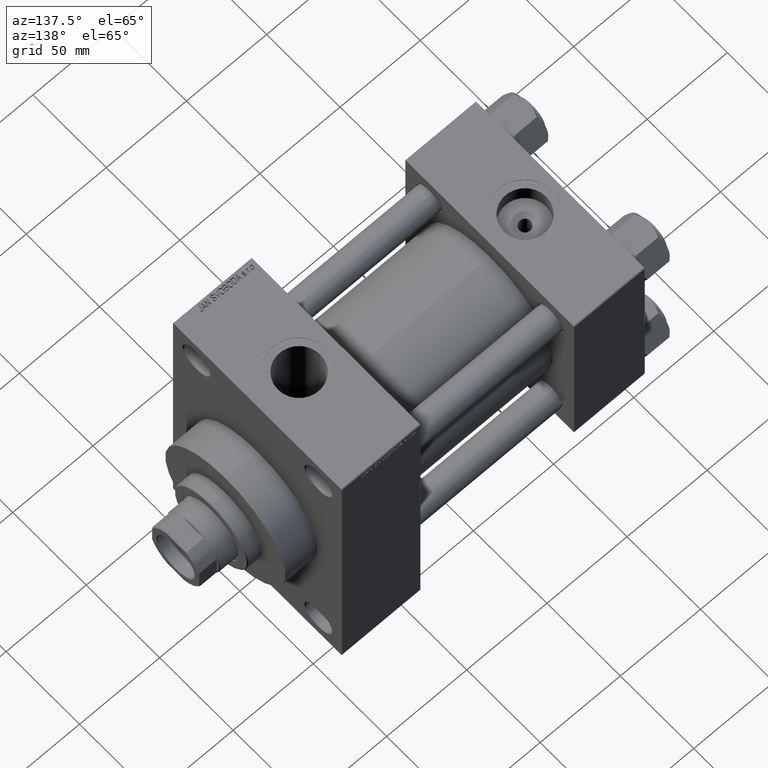
[diagram: clean part render]
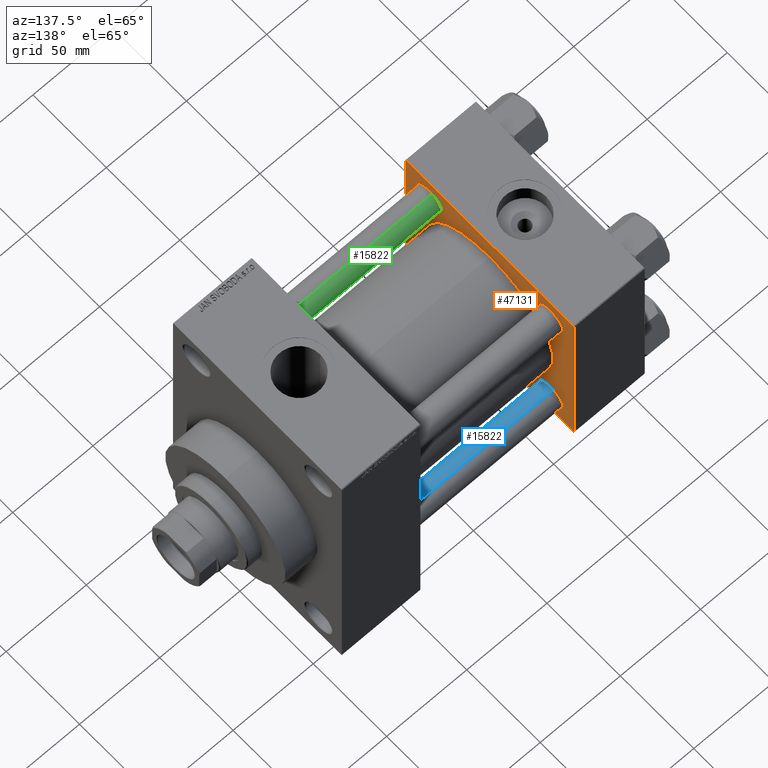
[diagram: same view with three faces highlighted in distinct colors, each labeled with its STEP entity id]
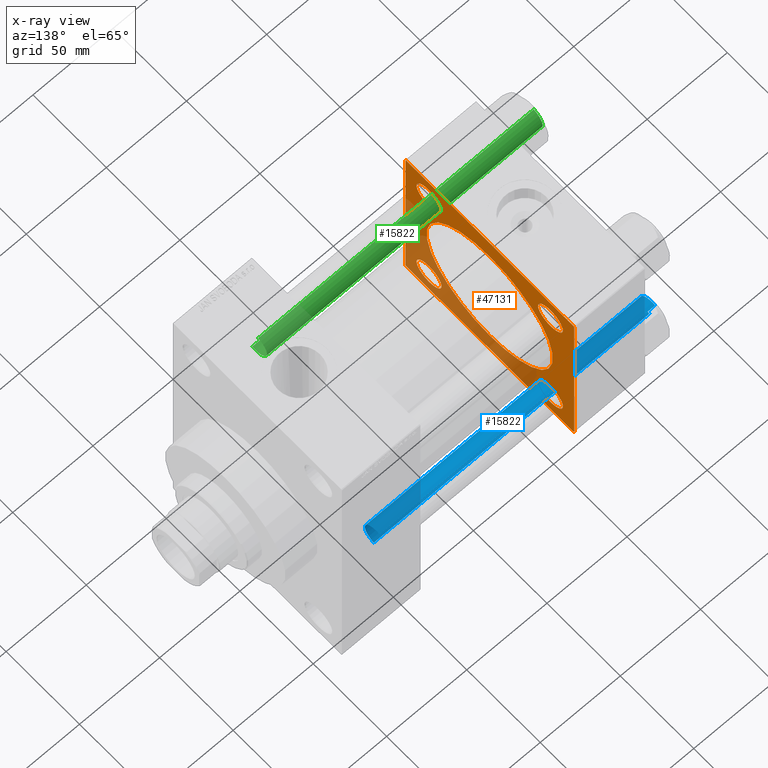
[diagram: x-ray of the same camera — body ghosted, the three highlighted faces saturated]
A machine part, auxiliary view with three faces highlighted in distinct colors.
The next image is the same camera in x-ray (body ghosted, the three faces saturated) — at least one of them is partly hidden behind the body in this view.
Their STEP definitions:

[orange] entity #47131 — the highlighted planar face has unit normal (-1, 0, 0).
#588 = CARTESIAN_POINT ( 'NONE',  ( 44.00000000000000000, 57.49999999999999289, 57.50000000000000711 ) ) ;
#1087 = ORIENTED_EDGE ( 'NONE', *, *, #45104, .T. ) ;
#1275 = ORIENTED_EDGE ( 'NONE', *, *, #8446, .F. ) ;
#1337 = CARTESIAN_POINT ( 'NONE',  ( 44.00000000000000000, -41.34999999999998721, -32.85000000000000142 ) ) ;
#1362 = ORIENTED_EDGE ( 'NONE', *, *, #43458, .T. ) ;
#1767 = CARTESIAN_POINT ( 'NONE',  ( 44.00000000000000000, -2.602085213965210642E-15, 0.000000000000000000 ) ) ;
#1899 = CARTESIAN_POINT ( 'NONE',  ( 44.00000000000000000, 41.34999999999999432, -41.35000000000000142 ) ) ;
#2249 = AXIS2_PLACEMENT_3D ( 'NONE', #2834, #24524, #2597 ) ;
#2264 = CARTESIAN_POINT ( 'NONE',  ( 44.00000000000000000, -57.50000000000000711, -57.00000000000000711 ) ) ;
#2323 = CARTESIAN_POINT ( 'NONE',  ( 44.00000000000000000, 41.34999999999999432, -41.35000000000000142 ) ) ;
#2597 = DIRECTION ( 'NONE',  ( -0.000000000000000000, 0.000000000000000000, 1.000000000000000000 ) ) ;
#2834 = CARTESIAN_POINT ( 'NONE',  ( 44.00000000000000000, 0.000000000000000000, 0.000000000000000000 ) ) ;
#2872 = CIRCLE ( 'NONE', #27506, 8.500000000000007105 ) ;
#2978 = CIRCLE ( 'NONE', #28356, 43.00000000000000000 ) ;
#3037 = VECTOR ( 'NONE', #37509, 1000.000000000000114 ) ;
#3075 = FACE_BOUND ( 'NONE', #32796, .T. ) ;
#3117 = LINE ( 'NONE', #28883, #27320 ) ;
#3121 = VERTEX_POINT ( 'NONE', #6233 ) ;
#3136 = CARTESIAN_POINT ( 'NONE',  ( 44.00000000000000000, -57.00000000000000711, -57.50000000000000711 ) ) ;
#3690 = DIRECTION ( 'NONE',  ( 1.000000000000000000, -0.000000000000000000, 0.000000000000000000 ) ) ;
#3863 = AXIS2_PLACEMENT_3D ( 'NONE', #2323, #39168, #39628 ) ;
#4770 = ORIENTED_EDGE ( 'NONE', *, *, #26924, .T. ) ;
#5289 = CIRCLE ( 'NONE', #26850, 8.500000000000007105 ) ;
#5513 = EDGE_CURVE ( 'NONE', #26879, #15354, #2872, .T. ) ;
#6045 = LINE ( 'NONE', #3136, #29995 ) ;
#6151 = CIRCLE ( 'NONE', #33060, 8.500000000000007105 ) ;
#6154 = CARTESIAN_POINT ( 'NONE',  ( 44.00000000000000000, 57.49999999999999289, -57.00000000000000711 ) ) ;
#6233 = CARTESIAN_POINT ( 'NONE',  ( 44.00000000000000000, 2.663896022368408223E-15, -43.00000000000000000 ) ) ;
#6638 = LINE ( 'NONE', #25185, #24540 ) ;
#6785 = ORIENTED_EDGE ( 'NONE', *, *, #17616, .F. ) ;
#6865 = VERTEX_POINT ( 'NONE', #26991 ) ;
#6921 = CARTESIAN_POINT ( 'NONE',  ( 44.00000000000000000, 57.49999999999999289, 57.50000000000000711 ) ) ;
#6930 = FACE_BOUND ( 'NONE', #13884, .T. ) ;
#7032 = CARTESIAN_POINT ( 'NONE',  ( 44.00000000000000000, 57.49999999999999289, 57.00000000000003553 ) ) ;
#8056 = LINE ( 'NONE', #588, #24678 ) ;
#8208 = VERTEX_POINT ( 'NONE', #38421 ) ;
#8231 = CARTESIAN_POINT ( 'NONE',  ( 44.00000000000000000, 41.34999999999999432, 32.84999999999999432 ) ) ;
#8342 = LINE ( 'NONE', #8582, #35010 ) ;
#8446 = EDGE_CURVE ( 'NONE', #21801, #3121, #2978, .T. ) ;
#8577 = ORIENTED_EDGE ( 'NONE', *, *, #8781, .T. ) ;
#8582 = CARTESIAN_POINT ( 'NONE',  ( 44.00000000000000000, -57.50000000000000711, 57.49999999999999289 ) ) ;
#8781 = EDGE_CURVE ( 'NONE', #31047, #42196, #36778, .T. ) ;
#9152 = EDGE_CURVE ( 'NONE', #28040, #19173, #5289, .T. ) ;
#9415 = ORIENTED_EDGE ( 'NONE', *, *, #16377, .F. ) ;
#9698 = ORIENTED_EDGE ( 'NONE', *, *, #32131, .T. ) ;
#9911 = EDGE_CURVE ( 'NONE', #42196, #29076, #6638, .T. ) ;
#10188 = CARTESIAN_POINT ( 'NONE',  ( 44.00000000000000000, 41.34999999999999432, 49.85000000000001563 ) ) ;
#10694 = DIRECTION ( 'NONE',  ( 0.000000000000000000, 0.000000000000000000, 1.000000000000000000 ) ) ;
#11527 = EDGE_CURVE ( 'NONE', #14632, #20571, #6151, .T. ) ;
#11706 = ORIENTED_EDGE ( 'NONE', *, *, #30492, .T. ) ;
#11915 = DIRECTION ( 'NONE',  ( 0.000000000000000000, 0.000000000000000000, -1.000000000000000000 ) ) ;
#11959 = CARTESIAN_POINT ( 'NONE',  ( 44.00000000000000000, 57.00000000000002132, -57.49999999999999289 ) ) ;
#12060 = LINE ( 'NONE', #29100, #3037 ) ;
#12842 = DIRECTION ( 'NONE',  ( 0.000000000000000000, 0.000000000000000000, 1.000000000000000000 ) ) ;
#13749 = ORIENTED_EDGE ( 'NONE', *, *, #11527, .T. ) ;
#13884 = EDGE_LOOP ( 'NONE', ( #33261, #38590 ) ) ;
#14314 = AXIS2_PLACEMENT_3D ( 'NONE', #27333, #41301, #30232 ) ;
#14429 = CARTESIAN_POINT ( 'NONE',  ( 44.00000000000000000, -41.34999999999998721, -49.85000000000002274 ) ) ;
#14533 = VECTOR ( 'NONE', #21366, 1000.000000000000000 ) ;
#14632 = VERTEX_POINT ( 'NONE', #33355 ) ;
#15076 = CIRCLE ( 'NONE', #14314, 8.500000000000007105 ) ;
#15354 = VERTEX_POINT ( 'NONE', #1337 ) ;
#15658 = ORIENTED_EDGE ( 'NONE', *, *, #18764, .T. ) ;
#15692 = CARTESIAN_POINT ( 'NONE',  ( 44.00000000000000000, 57.00000000000000711, 57.50000000000000711 ) ) ;
#15853 = DIRECTION ( 'NONE',  ( -1.000000000000000000, 0.000000000000000000, -0.000000000000000000 ) ) ;
#16338 = VERTEX_POINT ( 'NONE', #11959 ) ;
#16377 = EDGE_CURVE ( 'NONE', #16338, #8208, #33631, .T. ) ;
#17061 = DIRECTION ( 'NONE',  ( -1.000000000000000000, 0.000000000000000000, -0.000000000000000000 ) ) ;
#17616 = EDGE_CURVE ( 'NONE', #21924, #30653, #8056, .T. ) ;
#17702 = CARTESIAN_POINT ( 'NONE',  ( 44.00000000000000000, 41.34999999999999432, 41.35000000000000142 ) ) ;
#17764 = FACE_BOUND ( 'NONE', #31757, .T. ) ;
#17771 = CARTESIAN_POINT ( 'NONE',  ( 44.00000000000000000, -41.34999999999998721, 49.85000000000002274 ) ) ;
#17830 = ORIENTED_EDGE ( 'NONE', *, *, #42069, .F. ) ;
#17932 = DIRECTION ( 'NONE',  ( 0.000000000000000000, 0.000000000000000000, 1.000000000000000000 ) ) ;
#18363 = AXIS2_PLACEMENT_3D ( 'NONE', #47555, #3690, #36207 ) ;
#18614 = CIRCLE ( 'NONE', #45562, 8.500000000000007105 ) ;
#18764 = EDGE_CURVE ( 'NONE', #20571, #14632, #19343, .T. ) ;
#19173 = VERTEX_POINT ( 'NONE', #10188 ) ;
#19257 = CARTESIAN_POINT ( 'NONE',  ( 44.00000000000000000, 41.34999999999999432, -49.85000000000001563 ) ) ;
#19343 = CIRCLE ( 'NONE', #31683, 8.500000000000007105 ) ;
#20396 = EDGE_CURVE ( 'NONE', #6865, #45193, #18614, .T. ) ;
#20571 = VERTEX_POINT ( 'NONE', #17771 ) ;
#20696 = AXIS2_PLACEMENT_3D ( 'NONE', #41153, #45736, #26702 ) ;
#21177 = VERTEX_POINT ( 'NONE', #2264 ) ;
#21366 = DIRECTION ( 'NONE',  ( 0.000000000000000000, -1.000000000000000000, -1.206764157201257045E-16 ) ) ;
#21801 = VERTEX_POINT ( 'NONE', #22255 ) ;
#21924 = VERTEX_POINT ( 'NONE', #7032 ) ;
#21926 = ORIENTED_EDGE ( 'NONE', *, *, #45641, .T. ) ;
#22074 = ORIENTED_EDGE ( 'NONE', *, *, #9152, .T. ) ;
#22255 = CARTESIAN_POINT ( 'NONE',  ( 44.00000000000000000, -2.602085213965210642E-15, 43.00000000000000000 ) ) ;
#23193 = CARTESIAN_POINT ( 'NONE',  ( 44.00000000000000000, -57.00000000000003553, 57.49999999999999289 ) ) ;
#24524 = DIRECTION ( 'NONE',  ( -1.000000000000000000, 0.000000000000000000, -0.000000000000000000 ) ) ;
#24540 = VECTOR ( 'NONE', #25425, 1000.000000000000114 ) ;
#24678 = VECTOR ( 'NONE', #11915, 1000.000000000000000 ) ;
#25185 = CARTESIAN_POINT ( 'NONE',  ( 44.00000000000000000, -57.50000000000000711, 57.00000000000000711 ) ) ;
#25425 = DIRECTION ( 'NONE',  ( -0.000000000000000000, -0.7071067811865376918, -0.7071067811865573427 ) ) ;
#25461 = ORIENTED_EDGE ( 'NONE', *, *, #9911, .T. ) ;
#26702 = DIRECTION ( 'NONE',  ( 0.000000000000000000, 0.000000000000000000, 1.000000000000000000 ) ) ;
#26850 = AXIS2_PLACEMENT_3D ( 'NONE', #17702, #40333, #17932 ) ;
#26879 = VERTEX_POINT ( 'NONE', #14429 ) ;
#26886 = DIRECTION ( 'NONE',  ( 0.000000000000000000, 0.000000000000000000, -1.000000000000000000 ) ) ;
#26924 = EDGE_CURVE ( 'NONE', #21924, #31047, #3117, .T. ) ;
#26964 = CARTESIAN_POINT ( 'NONE',  ( 44.00000000000000000, -57.50000000000000711, 57.00000000000000711 ) ) ;
#26991 = CARTESIAN_POINT ( 'NONE',  ( 44.00000000000000000, 41.34999999999999432, -32.84999999999999432 ) ) ;
#27320 = VECTOR ( 'NONE', #47216, 1000.000000000000114 ) ;
#27333 = CARTESIAN_POINT ( 'NONE',  ( 44.00000000000000000, 41.34999999999999432, 41.35000000000000142 ) ) ;
#27506 = AXIS2_PLACEMENT_3D ( 'NONE', #29463, #36206, #10694 ) ;
#28040 = VERTEX_POINT ( 'NONE', #8231 ) ;
#28129 = FACE_BOUND ( 'NONE', #29453, .T. ) ;
#28141 = EDGE_LOOP ( 'NONE', ( #9415, #1362, #6785, #4770, #8577, #25461, #11706, #1087 ) ) ;
#28356 = AXIS2_PLACEMENT_3D ( 'NONE', #1767, #42456, #12842 ) ;
#28374 = FACE_OUTER_BOUND ( 'NONE', #28141, .T. ) ;
#28883 = CARTESIAN_POINT ( 'NONE',  ( 44.00000000000000000, 57.00000000000000711, 57.50000000000000711 ) ) ;
#29076 = VERTEX_POINT ( 'NONE', #26964 ) ;
#29100 = CARTESIAN_POINT ( 'NONE',  ( 44.00000000000000000, 57.49999999999999289, -57.00000000000000711 ) ) ;
#29453 = EDGE_LOOP ( 'NONE', ( #22074, #9698 ) ) ;
#29463 = CARTESIAN_POINT ( 'NONE',  ( 44.00000000000000000, -41.34999999999998721, -41.35000000000000853 ) ) ;
#29995 = VECTOR ( 'NONE', #32517, 1000.000000000000114 ) ;
#30232 = DIRECTION ( 'NONE',  ( 0.000000000000000000, 0.000000000000000000, 1.000000000000000000 ) ) ;
#30259 = DIRECTION ( 'NONE',  ( 0.000000000000000000, -1.000000000000000000, -1.206764157201257045E-16 ) ) ;
#30492 = EDGE_CURVE ( 'NONE', #29076, #21177, #8342, .T. ) ;
#30545 = DIRECTION ( 'NONE',  ( 0.000000000000000000, 0.000000000000000000, 1.000000000000000000 ) ) ;
#30653 = VERTEX_POINT ( 'NONE', #6154 ) ;
#31047 = VERTEX_POINT ( 'NONE', #15692 ) ;
#31683 = AXIS2_PLACEMENT_3D ( 'NONE', #34390, #15853, #30545 ) ;
#31757 = EDGE_LOOP ( 'NONE', ( #1275, #17830 ) ) ;
#32131 = EDGE_CURVE ( 'NONE', #19173, #28040, #15076, .T. ) ;
#32517 = DIRECTION ( 'NONE',  ( 0.000000000000000000, 0.7071067811865474617, -0.7071067811865474617 ) ) ;
#32796 = EDGE_LOOP ( 'NONE', ( #21926, #35750 ) ) ;
#33060 = AXIS2_PLACEMENT_3D ( 'NONE', #46909, #43516, #36280 ) ;
#33261 = ORIENTED_EDGE ( 'NONE', *, *, #5513, .T. ) ;
#33355 = CARTESIAN_POINT ( 'NONE',  ( 44.00000000000000000, -41.34999999999998721, 32.85000000000000142 ) ) ;
#33631 = LINE ( 'NONE', #34104, #43099 ) ;
#34104 = CARTESIAN_POINT ( 'NONE',  ( 44.00000000000000000, 57.49999999999999289, -57.49999999999999289 ) ) ;
#34390 = CARTESIAN_POINT ( 'NONE',  ( 44.00000000000000000, -41.34999999999998721, 41.35000000000000853 ) ) ;
#35010 = VECTOR ( 'NONE', #26886, 1000.000000000000000 ) ;
#35362 = FACE_BOUND ( 'NONE', #35970, .T. ) ;
#35750 = ORIENTED_EDGE ( 'NONE', *, *, #20396, .T. ) ;
#35970 = EDGE_LOOP ( 'NONE', ( #13749, #15658 ) ) ;
#36206 = DIRECTION ( 'NONE',  ( -1.000000000000000000, 0.000000000000000000, -0.000000000000000000 ) ) ;
#36207 = DIRECTION ( 'NONE',  ( 0.000000000000000000, 0.000000000000000000, 1.000000000000000000 ) ) ;
#36280 = DIRECTION ( 'NONE',  ( 0.000000000000000000, 0.000000000000000000, 1.000000000000000000 ) ) ;
#36778 = LINE ( 'NONE', #6921, #14533 ) ;
#37509 = DIRECTION ( 'NONE',  ( -0.000000000000000000, 0.7071067811865376918, 0.7071067811865573427 ) ) ;
#38421 = CARTESIAN_POINT ( 'NONE',  ( 44.00000000000000000, -57.00000000000000711, -57.50000000000000711 ) ) ;
#38590 = ORIENTED_EDGE ( 'NONE', *, *, #46243, .T. ) ;
#39168 = DIRECTION ( 'NONE',  ( -1.000000000000000000, 0.000000000000000000, -0.000000000000000000 ) ) ;
#39628 = DIRECTION ( 'NONE',  ( 0.000000000000000000, 0.000000000000000000, 1.000000000000000000 ) ) ;
#40333 = DIRECTION ( 'NONE',  ( -1.000000000000000000, 0.000000000000000000, -0.000000000000000000 ) ) ;
#41153 = CARTESIAN_POINT ( 'NONE',  ( 44.00000000000000000, -41.34999999999998721, -41.35000000000000853 ) ) ;
#41301 = DIRECTION ( 'NONE',  ( -1.000000000000000000, 0.000000000000000000, -0.000000000000000000 ) ) ;
#42069 = EDGE_CURVE ( 'NONE', #3121, #21801, #42989, .T. ) ;
#42196 = VERTEX_POINT ( 'NONE', #23193 ) ;
#42323 = CIRCLE ( 'NONE', #3863, 8.500000000000007105 ) ;
#42456 = DIRECTION ( 'NONE',  ( 1.000000000000000000, -0.000000000000000000, 0.000000000000000000 ) ) ;
#42989 = CIRCLE ( 'NONE', #18363, 43.00000000000000000 ) ;
#43099 = VECTOR ( 'NONE', #30259, 1000.000000000000000 ) ;
#43458 = EDGE_CURVE ( 'NONE', #16338, #30653, #12060, .T. ) ;
#43516 = DIRECTION ( 'NONE',  ( -1.000000000000000000, 0.000000000000000000, -0.000000000000000000 ) ) ;
#45104 = EDGE_CURVE ( 'NONE', #21177, #8208, #6045, .T. ) ;
#45193 = VERTEX_POINT ( 'NONE', #19257 ) ;
#45518 = DIRECTION ( 'NONE',  ( 0.000000000000000000, 0.000000000000000000, 1.000000000000000000 ) ) ;
#45562 = AXIS2_PLACEMENT_3D ( 'NONE', #1899, #17061, #45518 ) ;
#45641 = EDGE_CURVE ( 'NONE', #45193, #6865, #42323, .T. ) ;
#45736 = DIRECTION ( 'NONE',  ( -1.000000000000000000, 0.000000000000000000, -0.000000000000000000 ) ) ;
#46101 = CIRCLE ( 'NONE', #20696, 8.500000000000007105 ) ;
#46243 = EDGE_CURVE ( 'NONE', #15354, #26879, #46101, .T. ) ;
#46697 = PLANE ( 'NONE',  #2249 ) ;
#46909 = CARTESIAN_POINT ( 'NONE',  ( 44.00000000000000000, -41.34999999999998721, 41.35000000000000853 ) ) ;
#47131 = ADVANCED_FACE ( 'NONE', ( #6930, #3075, #35362, #28129, #17764, #28374 ), #46697, .F. ) ;
#47216 = DIRECTION ( 'NONE',  ( 0.000000000000000000, -0.7071067811865573427, 0.7071067811865376918 ) ) ;
#47555 = CARTESIAN_POINT ( 'NONE',  ( 44.00000000000000000, -2.602085213965210642E-15, 0.000000000000000000 ) ) ;

[blue] entity #15822 — the highlighted cylindrical surface (edge-blend (fillet) strip) has radius 8 mm, axis along (1, -0, 0).
#371 = DIRECTION ( 'NONE',  ( 1.000000000000000000, 0.000000000000000000, 0.000000000000000000 ) ) ;
#1597 = LINE ( 'NONE', #11965, #41471 ) ;
#2201 = DIRECTION ( 'NONE',  ( 1.000000000000000000, 0.000000000000000000, 0.000000000000000000 ) ) ;
#3833 = FACE_OUTER_BOUND ( 'NONE', #28235, .T. ) ;
#6728 = DIRECTION ( 'NONE',  ( -1.000000000000000000, 0.000000000000000000, 0.000000000000000000 ) ) ;
#8565 = DIRECTION ( 'NONE',  ( -0.000000000000000000, -0.000000000000000000, 1.000000000000000000 ) ) ;
#10342 = EDGE_CURVE ( 'NONE', #14763, #41975, #13027, .T. ) ;
#11173 = VERTEX_POINT ( 'NONE', #21164 ) ;
#11965 = CARTESIAN_POINT ( 'NONE',  ( 8.000000000000000000, 9.797174393178825657E-16, 173.0000000000000000 ) ) ;
#12232 = AXIS2_PLACEMENT_3D ( 'NONE', #24360, #23409, #2201 ) ;
#12255 = VECTOR ( 'NONE', #40089, 1000.000000000000000 ) ;
#12625 = CARTESIAN_POINT ( 'NONE',  ( 8.000000000000000000, 9.797174393178825657E-16, 172.5000000000000000 ) ) ;
#13027 = CIRCLE ( 'NONE', #12232, 8.000000000000000000 ) ;
#13125 = AXIS2_PLACEMENT_3D ( 'NONE', #25037, #44300, #6728 ) ;
#13798 = CIRCLE ( 'NONE', #47663, 8.000000000000000000 ) ;
#14317 = LINE ( 'NONE', #25409, #12255 ) ;
#14763 = VERTEX_POINT ( 'NONE', #12625 ) ;
#15337 = DIRECTION ( 'NONE',  ( -0.000000000000000000, -0.000000000000000000, -1.000000000000000000 ) ) ;
#15822 = ADVANCED_FACE ( 'NONE', ( #3833 ), #21654, .T. ) ;
#21164 = CARTESIAN_POINT ( 'NONE',  ( 8.000000000000000000, 9.797174393178825657E-16, 0.4999999999999449329 ) ) ;
#21654 = CYLINDRICAL_SURFACE ( 'NONE', #13125, 8.000000000000000000 ) ;
#22305 = CARTESIAN_POINT ( 'NONE',  ( 0.000000000000000000, 0.000000000000000000, 0.4999999999999449329 ) ) ;
#22542 = ORIENTED_EDGE ( 'NONE', *, *, #43790, .T. ) ;
#23409 = DIRECTION ( 'NONE',  ( 0.000000000000000000, 0.000000000000000000, -1.000000000000000000 ) ) ;
#24360 = CARTESIAN_POINT ( 'NONE',  ( 0.000000000000000000, 0.000000000000000000, 172.5000000000000000 ) ) ;
#25037 = CARTESIAN_POINT ( 'NONE',  ( 0.000000000000000000, 0.000000000000000000, 173.0000000000000000 ) ) ;
#25409 = CARTESIAN_POINT ( 'NONE',  ( -8.000000000000000000, 0.000000000000000000, 173.0000000000000000 ) ) ;
#27533 = VERTEX_POINT ( 'NONE', #40092 ) ;
#28235 = EDGE_LOOP ( 'NONE', ( #33422, #40801, #22542, #34085 ) ) ;
#33422 = ORIENTED_EDGE ( 'NONE', *, *, #46666, .F. ) ;
#34085 = ORIENTED_EDGE ( 'NONE', *, *, #43123, .T. ) ;
#40089 = DIRECTION ( 'NONE',  ( -0.000000000000000000, -0.000000000000000000, -1.000000000000000000 ) ) ;
#40092 = CARTESIAN_POINT ( 'NONE',  ( -8.000000000000000000, 0.000000000000000000, 0.4999999999999449329 ) ) ;
#40801 = ORIENTED_EDGE ( 'NONE', *, *, #10342, .T. ) ;
#41471 = VECTOR ( 'NONE', #15337, 1000.000000000000000 ) ;
#41975 = VERTEX_POINT ( 'NONE', #43444 ) ;
#43123 = EDGE_CURVE ( 'NONE', #27533, #11173, #13798, .T. ) ;
#43444 = CARTESIAN_POINT ( 'NONE',  ( -8.000000000000000000, 0.000000000000000000, 172.5000000000000000 ) ) ;
#43790 = EDGE_CURVE ( 'NONE', #41975, #27533, #14317, .T. ) ;
#44300 = DIRECTION ( 'NONE',  ( -0.000000000000000000, -0.000000000000000000, -1.000000000000000000 ) ) ;
#46666 = EDGE_CURVE ( 'NONE', #14763, #11173, #1597, .T. ) ;
#47663 = AXIS2_PLACEMENT_3D ( 'NONE', #22305, #8565, #371 ) ;

[green] entity #15822 — the highlighted cylindrical surface (edge-blend (fillet) strip) has radius 8 mm, axis along (1, 0, 0).
#371 = DIRECTION ( 'NONE',  ( 1.000000000000000000, 0.000000000000000000, 0.000000000000000000 ) ) ;
#1597 = LINE ( 'NONE', #11965, #41471 ) ;
#2201 = DIRECTION ( 'NONE',  ( 1.000000000000000000, 0.000000000000000000, 0.000000000000000000 ) ) ;
#3833 = FACE_OUTER_BOUND ( 'NONE', #28235, .T. ) ;
#6728 = DIRECTION ( 'NONE',  ( -1.000000000000000000, 0.000000000000000000, 0.000000000000000000 ) ) ;
#8565 = DIRECTION ( 'NONE',  ( -0.000000000000000000, -0.000000000000000000, 1.000000000000000000 ) ) ;
#10342 = EDGE_CURVE ( 'NONE', #14763, #41975, #13027, .T. ) ;
#11173 = VERTEX_POINT ( 'NONE', #21164 ) ;
#11965 = CARTESIAN_POINT ( 'NONE',  ( 8.000000000000000000, 9.797174393178825657E-16, 173.0000000000000000 ) ) ;
#12232 = AXIS2_PLACEMENT_3D ( 'NONE', #24360, #23409, #2201 ) ;
#12255 = VECTOR ( 'NONE', #40089, 1000.000000000000000 ) ;
#12625 = CARTESIAN_POINT ( 'NONE',  ( 8.000000000000000000, 9.797174393178825657E-16, 172.5000000000000000 ) ) ;
#13027 = CIRCLE ( 'NONE', #12232, 8.000000000000000000 ) ;
#13125 = AXIS2_PLACEMENT_3D ( 'NONE', #25037, #44300, #6728 ) ;
#13798 = CIRCLE ( 'NONE', #47663, 8.000000000000000000 ) ;
#14317 = LINE ( 'NONE', #25409, #12255 ) ;
#14763 = VERTEX_POINT ( 'NONE', #12625 ) ;
#15337 = DIRECTION ( 'NONE',  ( -0.000000000000000000, -0.000000000000000000, -1.000000000000000000 ) ) ;
#15822 = ADVANCED_FACE ( 'NONE', ( #3833 ), #21654, .T. ) ;
#21164 = CARTESIAN_POINT ( 'NONE',  ( 8.000000000000000000, 9.797174393178825657E-16, 0.4999999999999449329 ) ) ;
#21654 = CYLINDRICAL_SURFACE ( 'NONE', #13125, 8.000000000000000000 ) ;
#22305 = CARTESIAN_POINT ( 'NONE',  ( 0.000000000000000000, 0.000000000000000000, 0.4999999999999449329 ) ) ;
#22542 = ORIENTED_EDGE ( 'NONE', *, *, #43790, .T. ) ;
#23409 = DIRECTION ( 'NONE',  ( 0.000000000000000000, 0.000000000000000000, -1.000000000000000000 ) ) ;
#24360 = CARTESIAN_POINT ( 'NONE',  ( 0.000000000000000000, 0.000000000000000000, 172.5000000000000000 ) ) ;
#25037 = CARTESIAN_POINT ( 'NONE',  ( 0.000000000000000000, 0.000000000000000000, 173.0000000000000000 ) ) ;
#25409 = CARTESIAN_POINT ( 'NONE',  ( -8.000000000000000000, 0.000000000000000000, 173.0000000000000000 ) ) ;
#27533 = VERTEX_POINT ( 'NONE', #40092 ) ;
#28235 = EDGE_LOOP ( 'NONE', ( #33422, #40801, #22542, #34085 ) ) ;
#33422 = ORIENTED_EDGE ( 'NONE', *, *, #46666, .F. ) ;
#34085 = ORIENTED_EDGE ( 'NONE', *, *, #43123, .T. ) ;
#40089 = DIRECTION ( 'NONE',  ( -0.000000000000000000, -0.000000000000000000, -1.000000000000000000 ) ) ;
#40092 = CARTESIAN_POINT ( 'NONE',  ( -8.000000000000000000, 0.000000000000000000, 0.4999999999999449329 ) ) ;
#40801 = ORIENTED_EDGE ( 'NONE', *, *, #10342, .T. ) ;
#41471 = VECTOR ( 'NONE', #15337, 1000.000000000000000 ) ;
#41975 = VERTEX_POINT ( 'NONE', #43444 ) ;
#43123 = EDGE_CURVE ( 'NONE', #27533, #11173, #13798, .T. ) ;
#43444 = CARTESIAN_POINT ( 'NONE',  ( -8.000000000000000000, 0.000000000000000000, 172.5000000000000000 ) ) ;
#43790 = EDGE_CURVE ( 'NONE', #41975, #27533, #14317, .T. ) ;
#44300 = DIRECTION ( 'NONE',  ( -0.000000000000000000, -0.000000000000000000, -1.000000000000000000 ) ) ;
#46666 = EDGE_CURVE ( 'NONE', #14763, #11173, #1597, .T. ) ;
#47663 = AXIS2_PLACEMENT_3D ( 'NONE', #22305, #8565, #371 ) ;